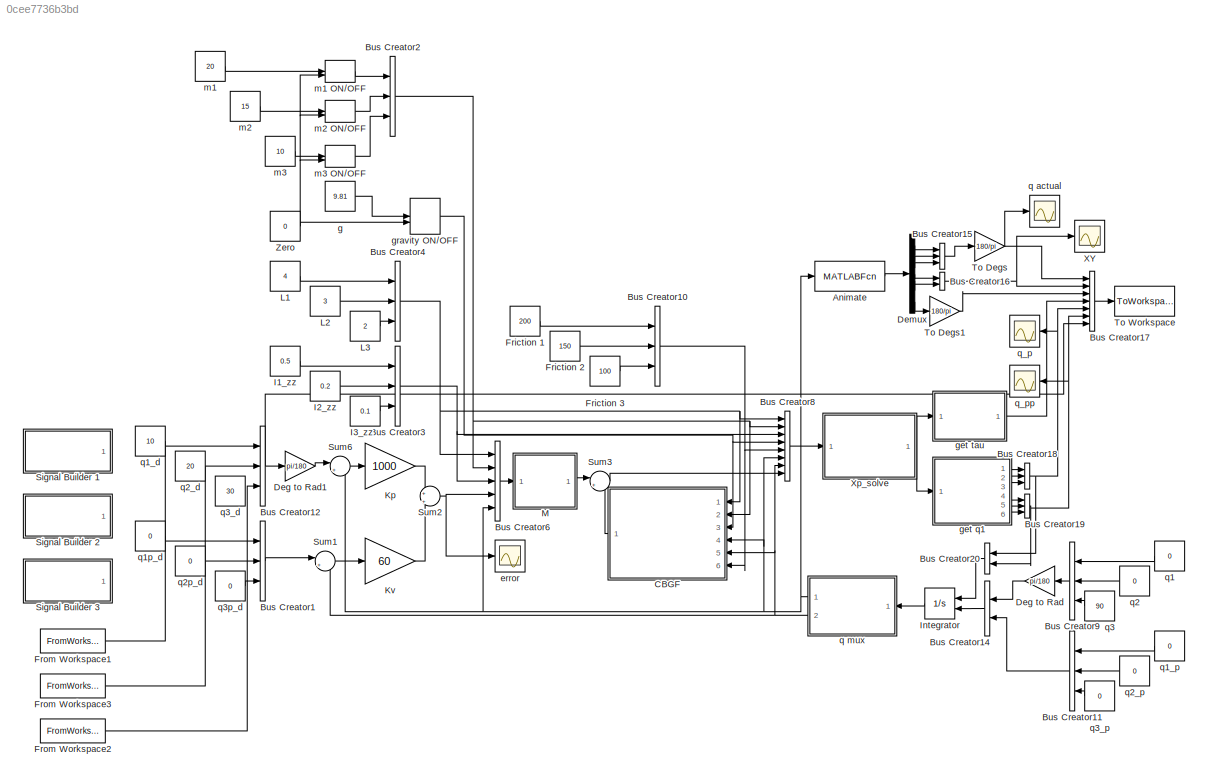
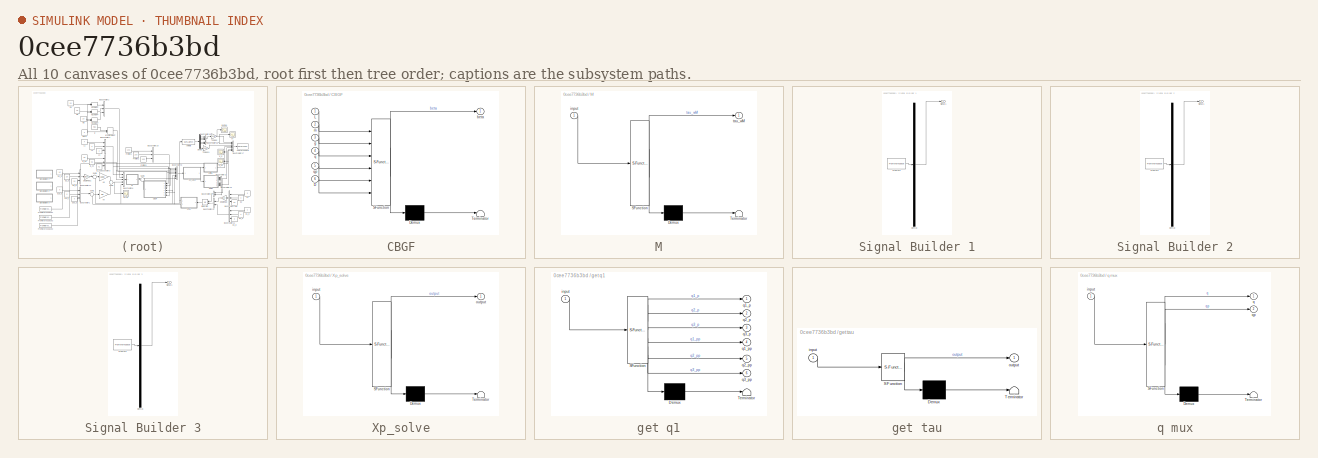
[diagram: thumbnail index - all 10 canvases of the model, root first then tree order]
MODEL slx_0cee7736b3bd
KIND model
BLOCK [MATLABFcn] Animate
  MATLABFcn = project_animate
  OutputDimensions = 6
  OutputSignalType = real
  Ports = [1, 1]
BLOCK [BusCreator] Bus Creator1
  DisplayOption = bar
  Inputs = 3
  Ports = [3, 1]
BLOCK [BusCreator] Bus Creator10
  DisplayOption = bar
  Inputs = 3
  Ports = [3, 1]
BLOCK [BusCreator] Bus Creator11
  DisplayOption = bar
  Inputs = 3
  Ports = [3, 1]
BLOCK [BusCreator] Bus Creator12
  DisplayOption = bar
  Inputs = 3
  Ports = [3, 1]
BLOCK [BusCreator] Bus Creator14
  DisplayOption = bar
  Inputs = 2
  Ports = [2, 1]
BLOCK [BusCreator] Bus Creator15
  DisplayOption = bar
  Inputs = 3
  Ports = [3, 1]
BLOCK [BusCreator] Bus Creator16
  DisplayOption = bar
  Inputs = 2
  Ports = [2, 1]
BLOCK [BusCreator] Bus Creator17
  DisplayOption = bar
  Inputs = 7
  Ports = [7, 1]
BLOCK [BusCreator] Bus Creator18
  DisplayOption = bar
  Inputs = 3
  Ports = [3, 1]
BLOCK [BusCreator] Bus Creator19
  DisplayOption = bar
  Inputs = 3
  Ports = [3, 1]
BLOCK [BusCreator] Bus Creator2
  DisplayOption = bar
  Inputs = 3
  Ports = [3, 1]
BLOCK [BusCreator] Bus Creator20
  DisplayOption = bar
  Inputs = 2
  Ports = [2, 1]
BLOCK [BusCreator] Bus Creator3
  DisplayOption = bar
  Inputs = 3
  Ports = [3, 1]
BLOCK [BusCreator] Bus Creator4
  DisplayOption = bar
  Inputs = 3
  Ports = [3, 1]
BLOCK [BusCreator] Bus Creator6
  DisplayOption = bar
  Inputs = 5
  Ports = [5, 1]
BLOCK [BusCreator] Bus Creator8
  DisplayOption = bar
  Inputs = 8
  Ports = [8, 1]
BLOCK [BusCreator] Bus Creator9
  DisplayOption = bar
  Inputs = 3
  Ports = [3, 1]
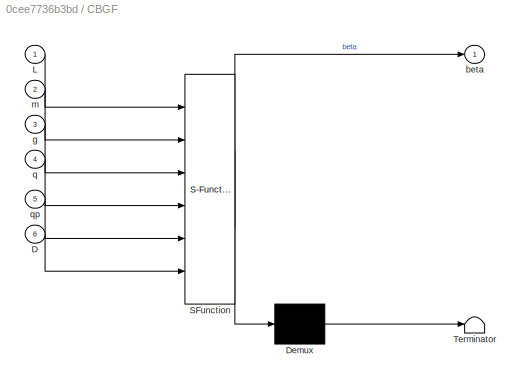
BLOCK [SubSystem] CBGF
  ErrorFcn = Stateflow.Translate.translate
  FunctionWithSeparateData = off
  MaskHideContents = off
  MinAlgLoopOccurrences = off
  Opaque = off
  PermitHierarchicalResolution = ExplicitOnly
  Ports = [6, 1]
  PropExecContextOutsideSubsystem = off
  RTWSystemCode = Auto
  RequestExecContextInheritance = off
  SFBlockType = MATLAB Function
  TreatAsAtomicUnit = on
BLOCK [Demux] CBGF/ Demux 
  Outputs = 1
  Ports = [1, 1]
BLOCK [S-Function] CBGF/ SFunction 
  EnableBusSupport = on
  FunctionName = sf_sfun
  PortCounts = [6 2]
  Ports = [6, 2]
  Tag = Stateflow S-Function project_task_3 2
BLOCK [Terminator] CBGF/ Terminator 
BLOCK [Inport] CBGF/D
  IconDisplay = Port number
  Port = 6
BLOCK [Inport] CBGF/L
  IconDisplay = Port number
BLOCK [Outport] CBGF/beta
  IconDisplay = Port number
BLOCK [Inport] CBGF/g
  IconDisplay = Port number
  Port = 3
BLOCK [Inport] CBGF/m
  IconDisplay = Port number
  Port = 2
BLOCK [Inport] CBGF/q
  IconDisplay = Port number
  Port = 4
BLOCK [Inport] CBGF/qp
  IconDisplay = Port number
  Port = 5
BLOCK [Gain] Deg to Rad
  Gain = pi/180
  OutDataTypeStr = Inherit: Inherit via internal rule
  ParamDataTypeStr = Inherit: Inherit via internal rule
  SaturateOnIntegerOverflow = off
BLOCK [Gain] Deg to Rad1
  Gain = pi/180
  OutDataTypeStr = Inherit: Inherit via internal rule
  ParamDataTypeStr = Inherit: Inherit via internal rule
  SaturateOnIntegerOverflow = off
BLOCK [Demux] Demux
  DisplayOption = bar
  Outputs = 6
  Ports = [1, 6]
BLOCK [Constant] Friction 1
  Value = 200
BLOCK [Constant] Friction 2
  Value = 150
BLOCK [Constant] Friction 3
  Value = 100
BLOCK [FromWorkspace] From Workspace1
  SampleTime = 0
  VariableName = q1spline
  ZeroCross = on
BLOCK [FromWorkspace] From Workspace2
  SampleTime = 0
  VariableName = q3spline
  ZeroCross = on
BLOCK [FromWorkspace] From Workspace3
  SampleTime = 0
  VariableName = q2spline
  ZeroCross = on
BLOCK [Constant] I1_zz
  Value = 0.5
BLOCK [Constant] I2_zz
  Value = 0.2
BLOCK [Constant] I3_zz
  Value = 0.1
BLOCK [Integrator] Integrator
  InitialConditionSource = external
  Ports = [2, 1]
BLOCK [Gain] Kp
  Gain = 1000
  OutDataTypeStr = Inherit: Inherit via internal rule
  ParamDataTypeStr = Inherit: Inherit via internal rule
  SaturateOnIntegerOverflow = off
BLOCK [Gain] Kv
  Gain = 60
  OutDataTypeStr = Inherit: Inherit via internal rule
  ParamDataTypeStr = Inherit: Inherit via internal rule
  SaturateOnIntegerOverflow = off
BLOCK [Constant] L1
  Value = 4
BLOCK [Constant] L2
  Value = 3
BLOCK [Constant] L3
  Value = 2
BLOCK [SubSystem] M
  ErrorFcn = Stateflow.Translate.translate
  FunctionWithSeparateData = off
  MaskHideContents = off
  MinAlgLoopOccurrences = off
  Opaque = off
  PermitHierarchicalResolution = ExplicitOnly
  Ports = [1, 1]
  PropExecContextOutsideSubsystem = off
  RTWSystemCode = Auto
  RequestExecContextInheritance = off
  SFBlockType = MATLAB Function
  TreatAsAtomicUnit = on
BLOCK [Demux] M/ Demux 
  Outputs = 1
  Ports = [1, 1]
BLOCK [S-Function] M/ SFunction 
  EnableBusSupport = on
  FunctionName = sf_sfun
  PortCounts = [1 2]
  Ports = [1, 2]
  Tag = Stateflow S-Function project_task_3 1
BLOCK [Terminator] M/ Terminator 
BLOCK [Inport] M/input
  IconDisplay = Port number
BLOCK [Outport] M/tau_wM
  IconDisplay = Port number
BLOCK [SubSystem] Signal Builder 1
  ClipboardFcn = sigbuilder_block('clipboard');
  CloseFcn = sigbuilder_block('close');
  ContinueFcn = sigbuilder_block('continue');
  CopyFcn = sigbuilder_block('copy');
  DeleteFcn = sigbuilder_block('delete');
  FunctionWithSeparateData = off
  LoadFcn = sigbuilder_block('load');
  MaskHideContents = on
  MinAlgLoopOccurrences = off
  ModelCloseFcn = sigbuilder_block('modelClose');
  NameChangeFcn = sigbuilder_block('namechange');
  Opaque = off
  OpenFcn = sigbuilder_block('open',[403.5 216 550.5 364.5 ]);
  PauseFcn = sigbuilder_block('pause');
  Ports = [0, 1]
  PreSaveFcn = sigbuilder_block('preSave');
  PropExecContextOutsideSubsystem = off
  RTWSystemCode = Auto
  RequestExecContextInheritance = off
  StartFcn = sigbuilder_block('start');
  StopFcn = sigbuilder_block('stop');
  Tag = STV Subsys
BLOCK [Demux] Signal Builder 1/Demux
  Outputs = 1
  Ports = [1, 1]
  Tag = STV Demux
BLOCK [FromWorkspace] Signal Builder 1/FromWs
  SampleTime = 0
  Tag = STV FromWs
  VariableName = tuvar
  ZeroCross = on
BLOCK [Outport] Signal Builder 1/Signal 1
  IconDisplay = Port number
  Tag = STV Outport
BLOCK [SubSystem] Signal Builder 2
  ClipboardFcn = sigbuilder_block('clipboard');
  CloseFcn = sigbuilder_block('close');
  ContinueFcn = sigbuilder_block('continue');
  CopyFcn = sigbuilder_block('copy');
  DeleteFcn = sigbuilder_block('delete');
  FunctionWithSeparateData = off
  LoadFcn = sigbuilder_block('load');
  MaskHideContents = on
  MinAlgLoopOccurrences = off
  ModelCloseFcn = sigbuilder_block('modelClose');
  NameChangeFcn = sigbuilder_block('namechange');
  Opaque = off
  OpenFcn = sigbuilder_block('open',[1147.5 204.75 550.5 369 ]);
  PauseFcn = sigbuilder_block('pause');
  Ports = [0, 1]
  PreSaveFcn = sigbuilder_block('preSave');
  PropExecContextOutsideSubsystem = off
  RTWSystemCode = Auto
  RequestExecContextInheritance = off
  StartFcn = sigbuilder_block('start');
  StopFcn = sigbuilder_block('stop');
  Tag = STV Subsys
BLOCK [Demux] Signal Builder 2/Demux
  Outputs = 1
  Ports = [1, 1]
  Tag = STV Demux
BLOCK [FromWorkspace] Signal Builder 2/FromWs
  SampleTime = 0
  Tag = STV FromWs
  VariableName = tuvar
  ZeroCross = on
BLOCK [Outport] Signal Builder 2/Signal 1
  IconDisplay = Port number
  Tag = STV Outport
BLOCK [SubSystem] Signal Builder 3
  ClipboardFcn = sigbuilder_block('clipboard');
  CloseFcn = sigbuilder_block('close');
  ContinueFcn = sigbuilder_block('continue');
  CopyFcn = sigbuilder_block('copy');
  DeleteFcn = sigbuilder_block('delete');
  FunctionWithSeparateData = off
  LoadFcn = sigbuilder_block('load');
  MaskHideContents = on
  MinAlgLoopOccurrences = off
  ModelCloseFcn = sigbuilder_block('modelClose');
  NameChangeFcn = sigbuilder_block('namechange');
  Opaque = off
  OpenFcn = sigbuilder_block('open',[1142.25 174.75 550.5 369 ]);
  PauseFcn = sigbuilder_block('pause');
  Ports = [0, 1]
  PreSaveFcn = sigbuilder_block('preSave');
  PropExecContextOutsideSubsystem = off
  RTWSystemCode = Auto
  RequestExecContextInheritance = off
  StartFcn = sigbuilder_block('start');
  StopFcn = sigbuilder_block('stop');
  Tag = STV Subsys
BLOCK [Demux] Signal Builder 3/Demux
  Outputs = 1
  Ports = [1, 1]
  Tag = STV Demux
BLOCK [FromWorkspace] Signal Builder 3/FromWs
  SampleTime = 0
  Tag = STV FromWs
  VariableName = tuvar
  ZeroCross = on
BLOCK [Outport] Signal Builder 3/Signal 1
  IconDisplay = Port number
  Tag = STV Outport
BLOCK [Sum] Sum1
  IconShape = round
  InputSameDT = off
  Inputs = |+-
  OutDataTypeStr = Inherit: Inherit via internal rule
  Ports = [2, 1]
  SaturateOnIntegerOverflow = off
BLOCK [Sum] Sum2
  IconShape = round
  InputSameDT = off
  Inputs = +|+
  OutDataTypeStr = Inherit: Inherit via internal rule
  Ports = [2, 1]
  SaturateOnIntegerOverflow = off
BLOCK [Sum] Sum3
  IconShape = round
  InputSameDT = off
  Inputs = |++
  OutDataTypeStr = Inherit: Inherit via internal rule
  Ports = [2, 1]
  SaturateOnIntegerOverflow = off
BLOCK [Sum] Sum6
  IconShape = round
  InputSameDT = off
  Inputs = |+-
  OutDataTypeStr = Inherit: Inherit via internal rule
  Ports = [2, 1]
  SaturateOnIntegerOverflow = off
BLOCK [Gain] To Degs
  Gain = 180/pi
  OutDataTypeStr = Inherit: Inherit via internal rule
  ParamDataTypeStr = Inherit: Inherit via internal rule
  SaturateOnIntegerOverflow = off
BLOCK [Gain] To Degs1
  Gain = 180/pi
  OutDataTypeStr = Inherit: Inherit via internal rule
  ParamDataTypeStr = Inherit: Inherit via internal rule
  SaturateOnIntegerOverflow = off
BLOCK [ToWorkspace] To Workspace
  MaxDataPoints = inf
  Ports = [1]
  SampleTime = -1
  SaveFormat = Structure With Time
  VariableName = simout
BLOCK [Scope] XY
  DataFormat = StructureWithTime
  Floating = off
  LegendLocations = 0.76483     0.83955     0.18149    0.078947
  NumInputPorts = 1
  Ports = [1]
  SampleTime = 0
  SaveName = ScopeData4
  SaveToWorkspace = on
  ShowLegends = on
  TimeRange = 10
  YMax = 9
  YMin = -8
BLOCK [SubSystem] Xp_solve
  ErrorFcn = Stateflow.Translate.translate
  FunctionWithSeparateData = off
  MaskHideContents = off
  MinAlgLoopOccurrences = off
  Opaque = off
  PermitHierarchicalResolution = ExplicitOnly
  Ports = [1, 1]
  PropExecContextOutsideSubsystem = off
  RTWSystemCode = Auto
  RequestExecContextInheritance = off
  SFBlockType = MATLAB Function
  TreatAsAtomicUnit = on
BLOCK [Demux] Xp_solve/ Demux 
  Outputs = 1
  Ports = [1, 1]
BLOCK [S-Function] Xp_solve/ SFunction 
  EnableBusSupport = on
  FunctionName = sf_sfun
  PortCounts = [1 2]
  Ports = [1, 2]
  Tag = Stateflow S-Function project_task_3 6
BLOCK [Terminator] Xp_solve/ Terminator 
BLOCK [Inport] Xp_solve/input
  IconDisplay = Port number
BLOCK [Outport] Xp_solve/output
  IconDisplay = Port number
BLOCK [Constant] Zero
  Value = 0
BLOCK [Scope] error
  DataFormat = StructureWithTime
  Floating = off
  LegendLocations = 0.86347     0.86951    0.073438    0.055258
  NumInputPorts = 1
  Ports = [1]
  SampleTime = 0
  SaveName = ScopeData3
  SaveToWorkspace = on
  ShowLegends = on
  TimeRange = 8
  YMax = 2.5
  YMin = -2.75
BLOCK [Constant] g
  Value = 9.81
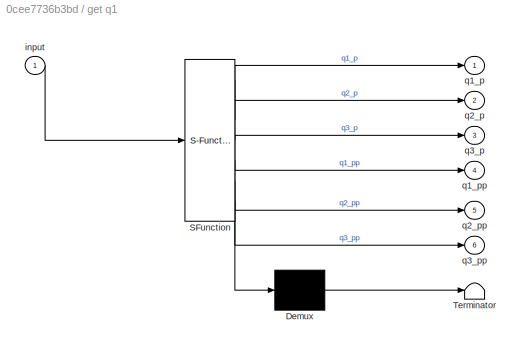
BLOCK [SubSystem] get q1
  ErrorFcn = Stateflow.Translate.translate
  FunctionWithSeparateData = off
  MaskHideContents = off
  MinAlgLoopOccurrences = off
  Opaque = off
  PermitHierarchicalResolution = ExplicitOnly
  Ports = [1, 6]
  PropExecContextOutsideSubsystem = off
  RTWSystemCode = Auto
  RequestExecContextInheritance = off
  SFBlockType = MATLAB Function
  TreatAsAtomicUnit = on
BLOCK [Demux] get q1/ Demux 
  Outputs = 1
  Ports = [1, 1]
BLOCK [S-Function] get q1/ SFunction 
  EnableBusSupport = on
  FunctionName = sf_sfun
  PortCounts = [1 7]
  Ports = [1, 7]
  Tag = Stateflow S-Function project_task_3 5
BLOCK [Terminator] get q1/ Terminator 
BLOCK [Inport] get q1/input
  IconDisplay = Port number
BLOCK [Outport] get q1/q1_p
  IconDisplay = Port number
BLOCK [Outport] get q1/q1_pp
  IconDisplay = Port number
  Port = 4
BLOCK [Outport] get q1/q2_p
  IconDisplay = Port number
  Port = 2
BLOCK [Outport] get q1/q2_pp
  IconDisplay = Port number
  Port = 5
BLOCK [Outport] get q1/q3_p
  IconDisplay = Port number
  Port = 3
BLOCK [Outport] get q1/q3_pp
  IconDisplay = Port number
  Port = 6
BLOCK [SubSystem] get tau
  ErrorFcn = Stateflow.Translate.translate
  FunctionWithSeparateData = off
  MaskHideContents = off
  MinAlgLoopOccurrences = off
  Opaque = off
  PermitHierarchicalResolution = ExplicitOnly
  Ports = [1, 1]
  PropExecContextOutsideSubsystem = off
  RTWSystemCode = Auto
  RequestExecContextInheritance = off
  SFBlockType = MATLAB Function
  TreatAsAtomicUnit = on
BLOCK [Demux] get tau/ Demux 
  Outputs = 1
  Ports = [1, 1]
BLOCK [S-Function] get tau/ SFunction 
  EnableBusSupport = on
  FunctionName = sf_sfun
  PortCounts = [1 2]
  Ports = [1, 2]
  Tag = Stateflow S-Function project_task_3 3
BLOCK [Terminator] get tau/ Terminator 
BLOCK [Inport] get tau/input
  IconDisplay = Port number
BLOCK [Outport] get tau/output
  IconDisplay = Port number
BLOCK [ManualSwitch] gravity ON//OFF
BLOCK [Constant] m1
  Value = 20
BLOCK [ManualSwitch] m1 ON//OFF
BLOCK [Constant] m2
  Value = 15
BLOCK [ManualSwitch] m2 ON//OFF
BLOCK [Constant] m3
  Value = 10
BLOCK [ManualSwitch] m3 ON//OFF
BLOCK [Scope] q actual
  DataFormat = StructureWithTime
  Floating = off
  NumInputPorts = 1
  Ports = [1]
  SampleTime = 0
  SaveToWorkspace = on
  ShowLegends = on
  TimeRange = 10
  YMax = 175
  YMin = -100
BLOCK [SubSystem] q mux
  ErrorFcn = Stateflow.Translate.translate
  FunctionWithSeparateData = off
  MaskHideContents = off
  MinAlgLoopOccurrences = off
  Opaque = off
  PermitHierarchicalResolution = ExplicitOnly
  Ports = [1, 2]
  PropExecContextOutsideSubsystem = off
  RTWSystemCode = Auto
  RequestExecContextInheritance = off
  SFBlockType = MATLAB Function
  TreatAsAtomicUnit = on
BLOCK [Demux] q mux/ Demux 
  Outputs = 1
  Ports = [1, 1]
BLOCK [S-Function] q mux/ SFunction 
  EnableBusSupport = on
  FunctionName = sf_sfun
  PortCounts = [1 3]
  Ports = [1, 3]
  Tag = Stateflow S-Function project_task_3 7
BLOCK [Terminator] q mux/ Terminator 
BLOCK [Inport] q mux/input
  IconDisplay = Port number
BLOCK [Outport] q mux/q
  IconDisplay = Port number
BLOCK [Outport] q mux/qp
  IconDisplay = Port number
  Port = 2
BLOCK [Constant] q1
  Value = 0
BLOCK [Constant] q1_d
  Value = 10
BLOCK [Constant] q1_p
  Value = 0
BLOCK [Constant] q1p_d
  Value = 0
BLOCK [Constant] q2
  Value = 0
BLOCK [Constant] q2_d
  Value = 20
BLOCK [Constant] q2_p
  Value = 0
BLOCK [Constant] q2p_d
  Value = 0
BLOCK [Constant] q3
  Value = 90
BLOCK [Constant] q3_d
  Value = 30
BLOCK [Constant] q3_p
  Value = 0
BLOCK [Constant] q3p_d
  Value = 0
BLOCK [Scope] q_p
  DataFormat = StructureWithTime
  Floating = off
  NumInputPorts = 1
  Ports = [1]
  SampleTime = 0
  SaveName = ScopeData1
  ShowLegends = on
  TimeRange = 20
  YMax = 1.5
  YMin = -1.75
BLOCK [Scope] q_pp
  DataFormat = StructureWithTime
  Floating = off
  NumInputPorts = 1
  Ports = [1]
  SampleTime = 0
  SaveName = ScopeData2
  ShowLegends = on
  TimeRange = 20
  YMax = 40
  YMin = -75
  ZoomMode = xonly
LINE Animate:1 -> Demux:1
NET Bus Creator10:1 -> Bus Creator8:5, CBGF:6
LINE Bus Creator11:1 -> Bus Creator14:2
NET Bus Creator12:1 -> Bus Creator17:7, Deg to Rad1:1
LINE Bus Creator14:1 -> Integrator:2
LINE Bus Creator15:1 -> To Degs:1
NET Bus Creator16:1 -> Bus Creator17:2, XY:1
LINE Bus Creator17:1 -> To Workspace:1
NET Bus Creator18:1 -> Bus Creator17:5, Bus Creator20:1, q_p:1
NET Bus Creator19:1 -> Bus Creator17:6, Bus Creator20:2, q_pp:1
LINE Bus Creator1:1 -> Sum1:1
LINE Bus Creator20:1 -> Integrator:1
NET Bus Creator2:1 -> Bus Creator6:2, Bus Creator8:2, CBGF:2
NET Bus Creator3:1 -> Bus Creator6:3, Bus Creator8:3
NET Bus Creator4:1 -> Bus Creator6:1, Bus Creator8:1, CBGF:1
LINE Bus Creator6:1 -> M:1
LINE Bus Creator8:1 -> Xp_solve:1
LINE Bus Creator9:1 -> Deg to Rad:1
LINE CBGF:1 -> Sum3:2
LINE Deg to Rad1:1 -> Sum6:1
LINE Deg to Rad:1 -> Bus Creator14:1
LINE Demux:1 -> Bus Creator15:1
LINE Demux:2 -> Bus Creator15:2
LINE Demux:3 -> Bus Creator15:3
LINE Demux:4 -> Bus Creator16:1
LINE Demux:5 -> Bus Creator16:2
LINE Demux:6 -> To Degs1:1
LINE Friction 1:1 -> Bus Creator10:1
LINE Friction 2:1 -> Bus Creator10:2
LINE Friction 3:1 -> Bus Creator10:3
LINE From Workspace1:1 -> Bus Creator12:1
LINE From Workspace2:1 -> Bus Creator12:3
LINE From Workspace3:1 -> Bus Creator12:2
LINE I1_zz:1 -> Bus Creator3:1
LINE I2_zz:1 -> Bus Creator3:2
LINE I3_zz:1 -> Bus Creator3:3
LINE Integrator:1 -> q mux:1
LINE Kp:1 -> Sum2:1
LINE Kv:1 -> Sum2:2
LINE L1:1 -> Bus Creator4:1
LINE L2:1 -> Bus Creator4:2
LINE L3:1 -> Bus Creator4:3
LINE M:1 -> Sum3:1
LINE Sum1:1 -> Kv:1
NET Sum2:1 -> Bus Creator6:4, error:1
LINE Sum3:1 -> Bus Creator8:8
LINE Sum6:1 -> Kp:1
LINE To Degs1:1 -> Bus Creator17:3
NET To Degs:1 -> Bus Creator17:1, q actual:1
NET Xp_solve:1 -> get q1:1, get tau:1
NET Zero:1 -> gravity ON//OFF:2, m1 ON//OFF:2, m2 ON//OFF:2, m3 ON//OFF:2
LINE g:1 -> gravity ON//OFF:1
LINE get q1:1 -> Bus Creator18:1
LINE get q1:2 -> Bus Creator18:2
LINE get q1:3 -> Bus Creator18:3
LINE get q1:4 -> Bus Creator19:1
LINE get q1:5 -> Bus Creator19:2
LINE get q1:6 -> Bus Creator19:3
LINE get tau:1 -> Bus Creator17:4
NET gravity ON//OFF:1 -> Bus Creator8:4, CBGF:3
LINE m1 ON//OFF:1 -> Bus Creator2:1
LINE m1:1 -> m1 ON//OFF:1
LINE m2 ON//OFF:1 -> Bus Creator2:2
LINE m2:1 -> m2 ON//OFF:1
LINE m3 ON//OFF:1 -> Bus Creator2:3
LINE m3:1 -> m3 ON//OFF:1
NET q mux:1 -> Animate:1, Bus Creator6:5, Bus Creator8:6, CBGF:4, Sum6:2
NET q mux:2 -> Bus Creator8:7, CBGF:5, Sum1:2
LINE q1:1 -> Bus Creator9:1
LINE q1_p:1 -> Bus Creator11:1
LINE q1p_d:1 -> Bus Creator1:1
LINE q2:1 -> Bus Creator9:2
LINE q2_p:1 -> Bus Creator11:2
LINE q2p_d:1 -> Bus Creator1:2
LINE q3:1 -> Bus Creator9:3
LINE q3_p:1 -> Bus Creator11:3
LINE q3p_d:1 -> Bus Creator1:3
note: NET lines group one-source signal fan-out (src -> all destinations, sorted); 1:1 wires keep LINE
